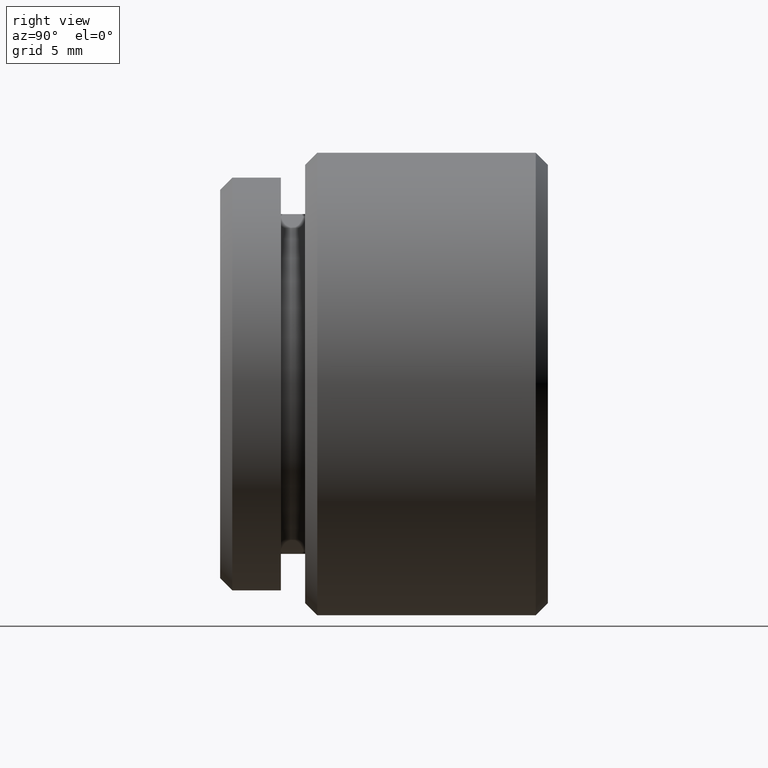
[diagram: clean part render]
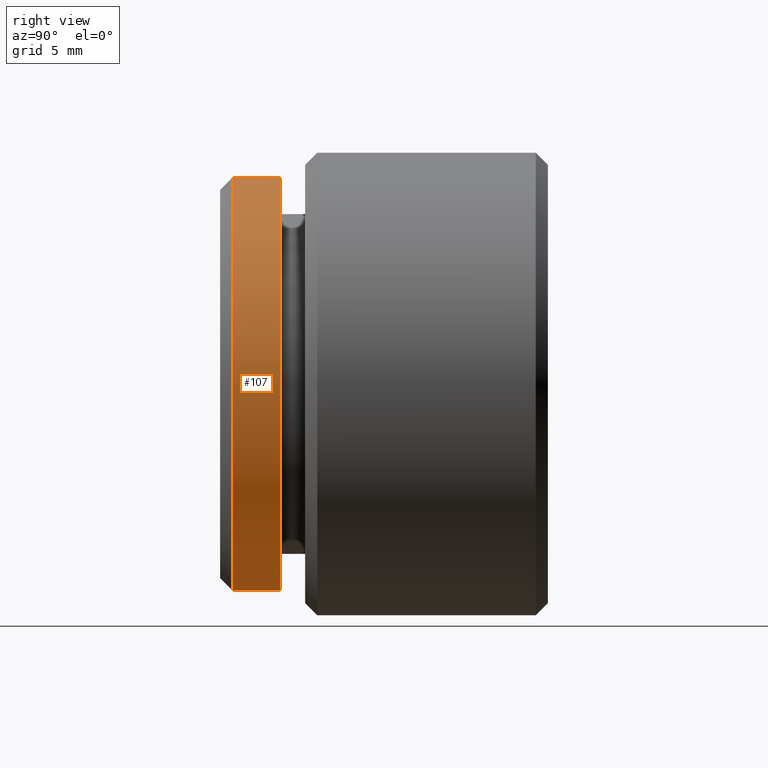
[diagram: same view with one face highlighted and labeled with its STEP entity id]
A machine part, right view. The second image highlights one B-rep face of the part: STEP entity #107.
In plain terms, the highlighted cylindrical surface (partial cylindrical patch) has radius 8.5 mm, axis along (-0, -1, -0).
Its self-contained STEP definition (entity closure, byte-faithful):
#14 = EDGE_CURVE ( 'NONE', #254, #433, #829, .T. ) ;
#15 = DIRECTION ( 'NONE',  ( -0.0000000000000000000, -1.000000000000000000, -0.0000000000000000000 ) ) ;
#24 = VERTEX_POINT ( 'NONE', #835 ) ;
#93 = DIRECTION ( 'NONE',  ( 0.0000000000000000000, 0.0000000000000000000, -1.000000000000000000 ) ) ;
#107 = ADVANCED_FACE ( 'NONE', ( #630 ), #746, .T. ) ;
#115 = ORIENTED_EDGE ( 'NONE', *, *, #14, .T. ) ;
#130 = ORIENTED_EDGE ( 'NONE', *, *, #871, .T. ) ;
#150 = ORIENTED_EDGE ( 'NONE', *, *, #713, .F. ) ;
#193 = DIRECTION ( 'NONE',  ( 0.0000000000000000000, 1.000000000000000000, 0.0000000000000000000 ) ) ;
#198 = AXIS2_PLACEMENT_3D ( 'NONE', #271, #862, #676 ) ;
#210 = DIRECTION ( 'NONE',  ( 0.0000000000000000000, 0.0000000000000000000, -1.000000000000000000 ) ) ;
#254 = VERTEX_POINT ( 'NONE', #328 ) ;
#271 = CARTESIAN_POINT ( 'NONE',  ( 0.0000000000000000000, 2.499999999999999600, 0.0000000000000000000 ) ) ;
#326 = ORIENTED_EDGE ( 'NONE', *, *, #748, .T. ) ;
#328 = CARTESIAN_POINT ( 'NONE',  ( 1.040949779275250100E-015, 2.499999999999999600, 8.500000000000000000 ) ) ;
#373 = VECTOR ( 'NONE', #870, 1000.000000000000000 ) ;
#377 = VERTEX_POINT ( 'NONE', #560 ) ;
#388 = CIRCLE ( 'NONE', #577, 8.500000000000000000 ) ;
#433 = VERTEX_POINT ( 'NONE', #524 ) ;
#524 = CARTESIAN_POINT ( 'NONE',  ( 1.040949779275250100E-015, 0.5000000000000022200, 8.500000000000000000 ) ) ;
#534 = CARTESIAN_POINT ( 'NONE',  ( 0.0000000000000000000, 0.0000000000000000000, 0.0000000000000000000 ) ) ;
#560 = CARTESIAN_POINT ( 'NONE',  ( 0.0000000000000000000, 2.499999999999999600, -8.500000000000000000 ) ) ;
#569 = LINE ( 'NONE', #794, #373 ) ;
#577 = AXIS2_PLACEMENT_3D ( 'NONE', #722, #193, #210 ) ;
#581 = DIRECTION ( 'NONE',  ( -0.0000000000000000000, -1.000000000000000000, -0.0000000000000000000 ) ) ;
#590 = CIRCLE ( 'NONE', #198, 8.500000000000000000 ) ;
#604 = EDGE_LOOP ( 'NONE', ( #326, #115, #130, #150 ) ) ;
#630 = FACE_OUTER_BOUND ( 'NONE', #604, .T. ) ;
#676 = DIRECTION ( 'NONE',  ( 0.0000000000000000000, 0.0000000000000000000, -1.000000000000000000 ) ) ;
#710 = VECTOR ( 'NONE', #15, 1000.000000000000000 ) ;
#713 = EDGE_CURVE ( 'NONE', #377, #24, #569, .T. ) ;
#722 = CARTESIAN_POINT ( 'NONE',  ( 0.0000000000000000000, 0.5000000000000022200, 0.0000000000000000000 ) ) ;
#746 = CYLINDRICAL_SURFACE ( 'NONE', #780, 8.500000000000000000 ) ;
#748 = EDGE_CURVE ( 'NONE', #377, #254, #590, .T. ) ;
#757 = CARTESIAN_POINT ( 'NONE',  ( 1.040949779275250100E-015, 0.0000000000000000000, 8.500000000000000000 ) ) ;
#780 = AXIS2_PLACEMENT_3D ( 'NONE', #534, #581, #93 ) ;
#794 = CARTESIAN_POINT ( 'NONE',  ( 0.0000000000000000000, 0.0000000000000000000, -8.500000000000000000 ) ) ;
#829 = LINE ( 'NONE', #757, #710 ) ;
#835 = CARTESIAN_POINT ( 'NONE',  ( 0.0000000000000000000, 0.5000000000000022200, -8.500000000000000000 ) ) ;
#862 = DIRECTION ( 'NONE',  ( -0.0000000000000000000, -1.000000000000000000, -0.0000000000000000000 ) ) ;
#870 = DIRECTION ( 'NONE',  ( -0.0000000000000000000, -1.000000000000000000, -0.0000000000000000000 ) ) ;
#871 = EDGE_CURVE ( 'NONE', #433, #24, #388, .T. ) ;